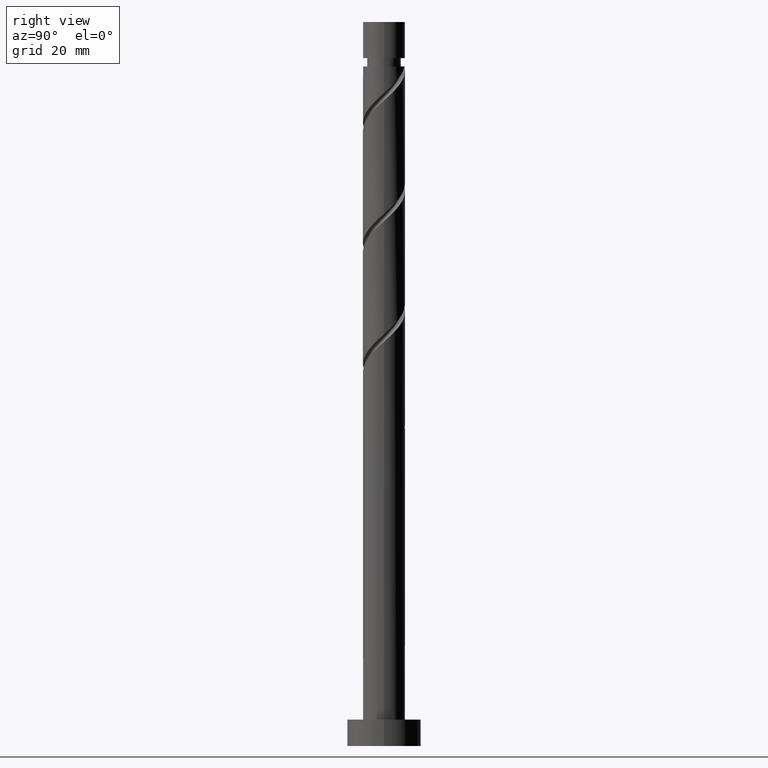
[diagram: clean part render]
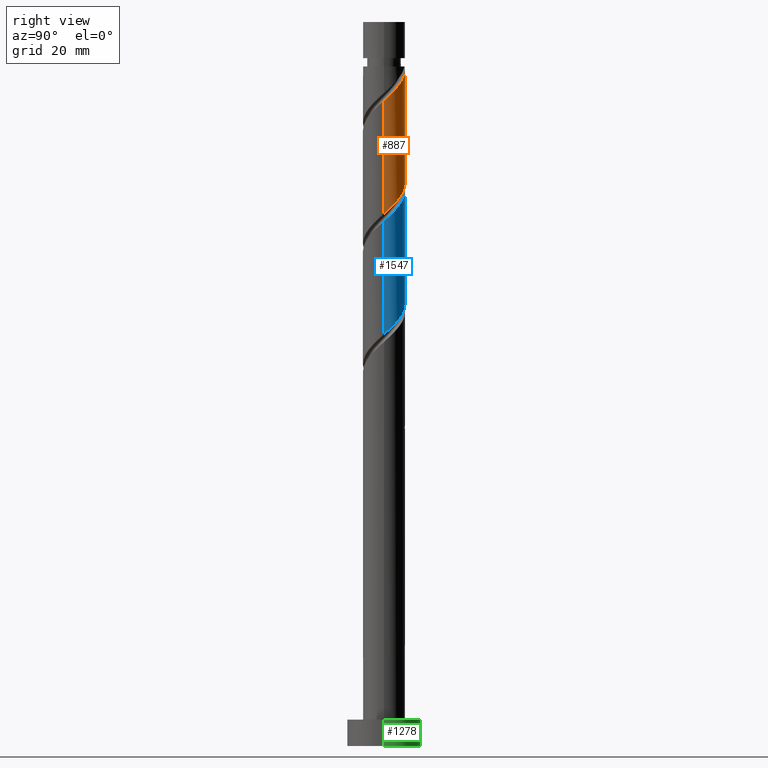
[diagram: same view with three faces highlighted in distinct colors, each labeled with its STEP entity id]
A machine part, right view with three faces highlighted in distinct colors.
Their STEP definitions:

[orange] entity #887 — the highlighted cylindrical surface (edge-blend (fillet) strip) has radius 4 mm, axis along (-0, -0, -1).
#4 = CARTESIAN_POINT ( 'NONE',  ( -3.482167122072585830, 1.968378046503446388, 110.7034948345876728 ) ) ;
#27 = VERTEX_POINT ( 'NONE', #565 ) ;
#46 = CARTESIAN_POINT ( 'NONE',  ( 4.000000000000000000, 5.817323879883851002E-15, 101.1229743360096620 ) ) ;
#57 = DIRECTION ( 'NONE',  ( -0.000000000000000000, -0.000000000000000000, -1.000000000000000000 ) ) ;
#94 = CARTESIAN_POINT ( 'NONE',  ( 2.948087585633559549, 2.703475464551748697, 103.8289948345876894 ) ) ;
#111 = CARTESIAN_POINT ( 'NONE',  ( 3.974115965681417784, 0.4543151893961406840, 101.5374948345876902 ) ) ;
#112 = AXIS2_PLACEMENT_3D ( 'NONE', #1468, #113, #830 ) ;
#113 = DIRECTION ( 'NONE',  ( -0.000000000000000000, -0.000000000000000000, -1.000000000000000000 ) ) ;
#128 = EDGE_CURVE ( 'NONE', #1279, #937, #281, .T. ) ;
#129 = CARTESIAN_POINT ( 'NONE',  ( -0.4543151893961414611, 3.974115965681417784, 107.2662448345876811 ) ) ;
#144 = EDGE_CURVE ( 'NONE', #1176, #27, #641, .T. ) ;
#154 = AXIS2_PLACEMENT_3D ( 'NONE', #1000, #57, #500 ) ;
#160 = DIRECTION ( 'NONE',  ( -0.000000000000000000, -0.000000000000000000, -1.000000000000000000 ) ) ;
#169 = FACE_OUTER_BOUND ( 'NONE', #1538, .T. ) ;
#210 = CARTESIAN_POINT ( 'NONE',  ( 2.519899137249414167, 3.170406666830032805, 104.4018698345876430 ) ) ;
#218 = CARTESIAN_POINT ( 'NONE',  ( 2.703475464551754026, 2.948087585633562213, 125.5982448345876747 ) ) ;
#232 = CARTESIAN_POINT ( 'NONE',  ( -3.793927577315138855, 1.416856955757478609, 111.2763698345876691 ) ) ;
#250 = CARTESIAN_POINT ( 'NONE',  ( 3.920000000000007034, 0.7959899496852963496, 123.3067448345876898 ) ) ;
#276 = CARTESIAN_POINT ( 'NONE',  ( -0.7959899496852943512, 3.919999999999990159, 129.0354948345876664 ) ) ;
#281 = LINE ( 'NONE', #417, #1370 ) ;
#290 = ORIENTED_EDGE ( 'NONE', *, *, #1429, .T. ) ;
#331 = CIRCLE ( 'NONE', #112, 3.999999999999996447 ) ;
#335 = CARTESIAN_POINT ( 'NONE',  ( 3.170406666830039910, 2.519899137249416832, 125.0253698345877069 ) ) ;
#351 = CARTESIAN_POINT ( 'NONE',  ( -3.919999999999999929, 0.7959899496852964607, 111.8492448345876653 ) ) ;
#353 = CARTESIAN_POINT ( 'NONE',  ( 4.000000000000005329, 1.169462017090045067E-15, 122.5755153331656828 ) ) ;
#362 = CARTESIAN_POINT ( 'NONE',  ( -1.660148792339430912, 3.639217771347837971, 108.4119948345876594 ) ) ;
#363 = CARTESIAN_POINT ( 'NONE',  ( -4.000000000000000000, 2.788717117676279064E-15, 112.5804743360096296 ) ) ;
#370 = CARTESIAN_POINT ( 'NONE',  ( 1.416856955757479719, 3.793927577315137079, 105.5476198345876639 ) ) ;
#405 = CARTESIAN_POINT ( 'NONE',  ( 1.083753322405399455, 3.902159508677980337, 127.3168698345876777 ) ) ;
#413 = ORIENTED_EDGE ( 'NONE', *, *, #144, .T. ) ;
#417 = CARTESIAN_POINT ( 'NONE',  ( -4.000000000000000000, 0.000000000000000000, 137.4900000000000091 ) ) ;
#421 = CARTESIAN_POINT ( 'NONE',  ( 0.4543151893961437926, 3.974115965681424001, 127.8897448345876882 ) ) ;
#441 = EDGE_CURVE ( 'NONE', #937, #27, #1274, .T. ) ;
#500 = DIRECTION ( 'NONE',  ( -1.000000000000000000, 0.000000000000000000, 0.000000000000000000 ) ) ;
#565 = CARTESIAN_POINT ( 'NONE',  ( 4.000000000000000000, 5.817323879883851002E-15, 101.1229743360096620 ) ) ;
#575 = CARTESIAN_POINT ( 'NONE',  ( 3.902159508677974564, 1.083753322405396124, 102.1103698345876580 ) ) ;
#584 = CARTESIAN_POINT ( 'NONE',  ( 4.000000000000000000, 0.2278949497857339357, 101.3314213732505351 ) ) ;
#641 = LINE ( 'NONE', #775, #1136 ) ;
#648 = CYLINDRICAL_SURFACE ( 'NONE', #154, 4.000000000000000000 ) ;
#695 = CARTESIAN_POINT ( 'NONE',  ( -4.000000000000000000, 2.788717117676279064E-15, 112.5804743360096296 ) ) ;
#704 = CARTESIAN_POINT ( 'NONE',  ( 1.968378046503447276, 3.482167122072585830, 104.9747448345876677 ) ) ;
#733 = CARTESIAN_POINT ( 'NONE',  ( -0.7959899496852943512, 3.919999999999990159, 129.0354948345876664 ) ) ;
#775 = CARTESIAN_POINT ( 'NONE',  ( 4.000000000000000000, 4.898587196589412829E-16, 137.4900000000000091 ) ) ;
#819 = CARTESIAN_POINT ( 'NONE',  ( -3.999999999999998224, 0.4020151261036919443, 112.2127660474269959 ) ) ;
#830 = DIRECTION ( 'NONE',  ( -1.000000000000000000, 0.000000000000000000, 0.000000000000000000 ) ) ;
#856 = CARTESIAN_POINT ( 'NONE',  ( 1.660148792339435131, 3.639217771347844188, 126.7439948345877241 ) ) ;
#887 = ADVANCED_FACE ( 'NONE', ( #169 ), #648, .T. ) ;
#901 = DIRECTION ( 'NONE',  ( -0.000000000000000000, -0.000000000000000000, -1.000000000000000000 ) ) ;
#911 = CARTESIAN_POINT ( 'NONE',  ( -3.999999999999996447, 0.000000000000000000, 129.0354948345876664 ) ) ;
#937 = VERTEX_POINT ( 'NONE', #363 ) ;
#965 = CARTESIAN_POINT ( 'NONE',  ( -3.170406666830033693, 2.519899137249412835, 110.1306198345876481 ) ) ;
#974 = CARTESIAN_POINT ( 'NONE',  ( -2.703475464551749585, 2.948087585633559105, 109.5577448345876803 ) ) ;
#1000 = CARTESIAN_POINT ( 'NONE',  ( 0.000000000000000000, 0.000000000000000000, 137.4900000000000091 ) ) ;
#1070 = CARTESIAN_POINT ( 'NONE',  ( 2.236544262273469030, 3.376276034017708483, 126.1711198345876994 ) ) ;
#1088 = CARTESIAN_POINT ( 'NONE',  ( 4.000000000000007994, 0.4020151261036809531, 122.9432236217483307 ) ) ;
#1098 = VERTEX_POINT ( 'NONE', #276 ) ;
#1136 = VECTOR ( 'NONE', #901, 1000.000000000000000 ) ;
#1176 = VERTEX_POINT ( 'NONE', #353 ) ;
#1179 = CARTESIAN_POINT ( 'NONE',  ( 3.639217771347838415, 1.660148792339430246, 102.6832448345876685 ) ) ;
#1189 = CARTESIAN_POINT ( 'NONE',  ( 3.376276034017703154, 2.236544262273462813, 103.2561198345876647 ) ) ;
#1197 = EDGE_CURVE ( 'NONE', #1176, #1098, #1454, .T. ) ;
#1239 = ORIENTED_EDGE ( 'NONE', *, *, #128, .F. ) ;
#1274 =( BOUNDED_CURVE ( )  B_SPLINE_CURVE ( 2, ( #695, #819, #351, #232, #4, #965, #974, #1303, #362, #1328, #129, #1457, #1541, #370, #704, #210, #94, #1189, #1179, #575, #111, #584, #46 ),
 .UNSPECIFIED., .F., .T. ) 
 B_SPLINE_CURVE_WITH_KNOTS ( ( 3, 2, 2, 2, 2, 2, 2, 2, 2, 2, 2, 3 ),
 ( 0.4295322023138553047, 0.4375000000000000000, 0.4500000000000000111, 0.4625000000000000222, 0.4749999999999999778, 0.4874999999999999889, 0.5000000000000000000, 0.5124999999999999556, 0.5250000000000000222, 0.5374999999999999778, 0.5500000000000000444, 0.5545322023138551382 ),
 .UNSPECIFIED. ) 
 CURVE ( )  GEOMETRIC_REPRESENTATION_ITEM ( )  RATIONAL_B_SPLINE_CURVE ( ( 0.9039174447099351806, 0.9019565955404647006, 0.9090909090909128354, 0.8978984914501290104, 0.9090909090909128354, 0.8978984914501290104, 0.9090909090909128354, 0.8978984914501290104, 0.9090909090909128354, 0.8978984914501290104, 0.9090909090909128354, 0.8978984914501290104, 0.9090909090909128354, 0.8978984914501290104, 0.9090909090909128354, 0.8978984914501290104, 0.9090909090909128354, 0.8978984914501290104, 0.9090909090909128354, 0.8978984914501290104, 0.9090909090909128354, 0.9050328050005773672, 0.9039174447099351806 ) ) 
 REPRESENTATION_ITEM ( '' )  );
#1279 = VERTEX_POINT ( 'NONE', #911 ) ;
#1303 = CARTESIAN_POINT ( 'NONE',  ( -2.236544262273463701, 3.376276034017703154, 108.9848698345876414 ) ) ;
#1328 = CARTESIAN_POINT ( 'NONE',  ( -1.083753322405396347, 3.902159508677974564, 107.8391198345876347 ) ) ;
#1339 = CARTESIAN_POINT ( 'NONE',  ( -0.1751229436131125916, 4.046072422684867220, 128.4626198345877128 ) ) ;
#1370 = VECTOR ( 'NONE', #160, 1000.000000000000000 ) ;
#1429 = EDGE_CURVE ( 'NONE', #1279, #1098, #331, .T. ) ;
#1445 = CARTESIAN_POINT ( 'NONE',  ( 4.000000000000005329, 1.169462017090045067E-15, 122.5755153331656828 ) ) ;
#1448 = ORIENTED_EDGE ( 'NONE', *, *, #1197, .F. ) ;
#1454 =( BOUNDED_CURVE ( )  B_SPLINE_CURVE ( 2, ( #1445, #1088, #250, #1542, #1569, #335, #218, #1070, #856, #405, #421, #1339, #733 ),
 .UNSPECIFIED., .F., .T. ) 
 B_SPLINE_CURVE_WITH_KNOTS ( ( 3, 2, 2, 2, 2, 2, 3 ),
 ( 0.6795322023138551382, 0.6875000000000000000, 0.6999999999999999556, 0.7125000000000000222, 0.7249999999999999778, 0.7375000000000000444, 0.7500000000000000000 ),
 .UNSPECIFIED. ) 
 CURVE ( )  GEOMETRIC_REPRESENTATION_ITEM ( )  RATIONAL_B_SPLINE_CURVE ( ( 0.9039174447099409537, 0.9019565955404700297, 0.9090909090909186085, 0.8978984914501346726, 0.9090909090909186085, 0.8978984914501346726, 0.9090909090909186085, 0.8978984914501346726, 0.9090909090909186085, 0.8978984914501346726, 0.9090909090909186085, 0.8978984914501346726, 0.9090909090909186085 ) ) 
 REPRESENTATION_ITEM ( '' )  );
#1457 = CARTESIAN_POINT ( 'NONE',  ( 0.1751229436131140627, 4.046072422684861891, 106.6933698345876564 ) ) ;
#1467 = ORIENTED_EDGE ( 'NONE', *, *, #441, .F. ) ;
#1468 = CARTESIAN_POINT ( 'NONE',  ( 0.000000000000000000, 0.000000000000000000, 129.0354948345876664 ) ) ;
#1538 = EDGE_LOOP ( 'NONE', ( #1448, #413, #1467, #1239, #290 ) ) ;
#1541 = CARTESIAN_POINT ( 'NONE',  ( 0.7959899496852972378, 3.919999999999999929, 106.1204948345876744 ) ) ;
#1542 = CARTESIAN_POINT ( 'NONE',  ( 3.793927577315144184, 1.416856955757479275, 123.8796198345877002 ) ) ;
#1569 = CARTESIAN_POINT ( 'NONE',  ( 3.482167122072592047, 1.968378046503447720, 124.4524948345876680 ) ) ;

[blue] entity #1547 — the highlighted cylindrical surface (edge-blend (fillet) strip) has radius 4 mm, axis along (-0, -0, -1).
#78 = CARTESIAN_POINT ( 'NONE',  ( -4.000000000000004441, 0.2278949497857358508, 110.9095682959247853 ) ) ;
#95 = CARTESIAN_POINT ( 'NONE',  ( -2.519899137249416832, 3.170406666830039022, 107.8391198345876774 ) ) ;
#121 = CARTESIAN_POINT ( 'NONE',  ( 1.968378046503447276, 3.482167122072585830, 82.05974483458764723 ) ) ;
#193 = CARTESIAN_POINT ( 'NONE',  ( 2.703475464551754026, 2.948087585633562213, 102.6832448345876827 ) ) ;
#201 = DIRECTION ( 'NONE',  ( -0.000000000000000000, -0.000000000000000000, -1.000000000000000000 ) ) ;
#202 = CARTESIAN_POINT ( 'NONE',  ( 0.4543151893961437926, 3.974115965681424001, 104.9747448345876819 ) ) ;
#261 = LINE ( 'NONE', #1275, #1138 ) ;
#310 = CARTESIAN_POINT ( 'NONE',  ( 1.660148792339435131, 3.639217771347844188, 103.8289948345877178 ) ) ;
#317 = CARTESIAN_POINT ( 'NONE',  ( -3.974115965681424001, 0.4543151893961430154, 110.7034948345876586 ) ) ;
#321 = EDGE_CURVE ( 'NONE', #1324, #798, #1059, .T. ) ;
#324 = CARTESIAN_POINT ( 'NONE',  ( 3.170406666830039910, 2.519899137249416832, 102.1103698345877007 ) ) ;
#342 = EDGE_LOOP ( 'NONE', ( #905, #480, #787, #661 ) ) ;
#365 = LINE ( 'NONE', #461, #1552 ) ;
#416 = CARTESIAN_POINT ( 'NONE',  ( 0.1751229436131140627, 4.046072422684861891, 83.77836983458766440 ) ) ;
#424 = EDGE_CURVE ( 'NONE', #826, #1526, #1492, .T. ) ;
#427 = CARTESIAN_POINT ( 'NONE',  ( -3.639217771347844188, 1.660148792339434021, 109.5577448345877087 ) ) ;
#447 = CARTESIAN_POINT ( 'NONE',  ( -1.083753322405396347, 3.902159508677974564, 84.92411983458764269 ) ) ;
#461 = CARTESIAN_POINT ( 'NONE',  ( 4.000000000000000000, 4.898587196589412829E-16, 137.4900000000000091 ) ) ;
#475 = CARTESIAN_POINT ( 'NONE',  ( 4.000000000000000000, 0.2278949497857339357, 78.41642137325052886 ) ) ;
#480 = ORIENTED_EDGE ( 'NONE', *, *, #1409, .T. ) ;
#589 = CARTESIAN_POINT ( 'NONE',  ( 2.948087585633559549, 2.703475464551748697, 80.91399483458765474 ) ) ;
#591 = DIRECTION ( 'NONE',  ( -0.000000000000000000, -0.000000000000000000, -1.000000000000000000 ) ) ;
#599 = CARTESIAN_POINT ( 'NONE',  ( 4.000000000000007105, 3.268496406738844695E-15, 99.66051533316570499 ) ) ;
#602 = CARTESIAN_POINT ( 'NONE',  ( -3.793927577315138855, 1.416856955757478609, 88.36136983458767702 ) ) ;
#647 = CARTESIAN_POINT ( 'NONE',  ( -0.4543151893961414611, 3.974115965681417784, 84.35124483458767486 ) ) ;
#661 = ORIENTED_EDGE ( 'NONE', *, *, #1248, .F. ) ;
#679 = CARTESIAN_POINT ( 'NONE',  ( -2.948087585633563101, 2.703475464551753582, 108.4119948345877162 ) ) ;
#688 = CARTESIAN_POINT ( 'NONE',  ( -0.1751229436131125916, 4.046072422684867220, 105.5476198345876782 ) ) ;
#723 = CARTESIAN_POINT ( 'NONE',  ( 3.376276034017703154, 2.236544262273462813, 80.34111983458765849 ) ) ;
#726 = CARTESIAN_POINT ( 'NONE',  ( -4.000000000000000888, 0.4020151261036819523, 89.29776604742701807 ) ) ;
#734 = CARTESIAN_POINT ( 'NONE',  ( -3.919999999999999929, 0.7959899496852964607, 88.93424483458767327 ) ) ;
#787 = ORIENTED_EDGE ( 'NONE', *, *, #424, .F. ) ;
#790 = CARTESIAN_POINT ( 'NONE',  ( -3.902159508677980337, 1.083753322405399011, 110.1306198345876766 ) ) ;
#798 = VERTEX_POINT ( 'NONE', #1460 ) ;
#800 = CARTESIAN_POINT ( 'NONE',  ( 0.000000000000000000, 0.000000000000000000, 137.4900000000000091 ) ) ;
#826 = VERTEX_POINT ( 'NONE', #853 ) ;
#829 = CARTESIAN_POINT ( 'NONE',  ( 1.416856955757479719, 3.793927577315137079, 82.63261983458764348 ) ) ;
#853 = CARTESIAN_POINT ( 'NONE',  ( -4.000000000000000888, 4.827779096192269279E-15, 89.66547433600965178 ) ) ;
#900 = CARTESIAN_POINT ( 'NONE',  ( 0.7959899496852972378, 3.919999999999999929, 83.20549483458768236 ) ) ;
#905 = ORIENTED_EDGE ( 'NONE', *, *, #321, .F. ) ;
#914 = CARTESIAN_POINT ( 'NONE',  ( 3.482167122072592047, 1.968378046503447720, 101.5374948345877044 ) ) ;
#922 = CARTESIAN_POINT ( 'NONE',  ( 4.000000000000007105, 3.268496406738844695E-15, 99.66051533316570499 ) ) ;
#927 = FACE_OUTER_BOUND ( 'NONE', #342, .T. ) ;
#928 = CARTESIAN_POINT ( 'NONE',  ( -3.170406666830033693, 2.519899137249412835, 87.21561983458765610 ) ) ;
#929 = CARTESIAN_POINT ( 'NONE',  ( 3.920000000000007034, 0.7959899496852963496, 100.3917448345876977 ) ) ;
#948 = CARTESIAN_POINT ( 'NONE',  ( 3.974115965681417784, 0.4543151893961406840, 78.62249483458768395 ) ) ;
#955 = CARTESIAN_POINT ( 'NONE',  ( 2.519899137249414167, 3.170406666830032805, 81.48686983458766520 ) ) ;
#1029 = CARTESIAN_POINT ( 'NONE',  ( -3.376276034017708927, 2.236544262273468142, 108.9848698345876841 ) ) ;
#1043 = CARTESIAN_POINT ( 'NONE',  ( -1.416856955757480163, 3.793927577315144184, 106.6933698345876707 ) ) ;
#1059 =( BOUNDED_CURVE ( )  B_SPLINE_CURVE ( 2, ( #922, #1404, #929, #1157, #914, #324, #193, #1522, #310, #1293, #202, #688, #1171, #1043, #1267, #95, #679, #1029, #427, #790, #317, #78, #1515 ),
 .UNSPECIFIED., .F., .T. ) 
 B_SPLINE_CURVE_WITH_KNOTS ( ( 3, 2, 2, 2, 2, 2, 2, 2, 2, 2, 2, 3 ),
 ( 0.4295322023138553047, 0.4375000000000000000, 0.4499999999999999556, 0.4625000000000000222, 0.4749999999999999778, 0.4875000000000000444, 0.5000000000000000000, 0.5124999999999999556, 0.5250000000000000222, 0.5374999999999999778, 0.5500000000000000444, 0.5545322023138551382 ),
 .UNSPECIFIED. ) 
 CURVE ( )  GEOMETRIC_REPRESENTATION_ITEM ( )  RATIONAL_B_SPLINE_CURVE ( ( 0.9039174447099407317, 0.9019565955404702517, 0.9090909090909186085, 0.8978984914501346726, 0.9090909090909186085, 0.8978984914501346726, 0.9090909090909186085, 0.8978984914501346726, 0.9090909090909186085, 0.8978984914501346726, 0.9090909090909186085, 0.8978984914501346726, 0.9090909090909186085, 0.8978984914501346726, 0.9090909090909186085, 0.8978984914501346726, 0.9090909090909186085, 0.8978984914501346726, 0.9090909090909186085, 0.8978984914501346726, 0.9090909090909186085, 0.9050328050005831404, 0.9039174447099409537 ) ) 
 REPRESENTATION_ITEM ( '' )  );
#1068 = CARTESIAN_POINT ( 'NONE',  ( 3.902159508677974564, 1.083753322405396124, 79.19536983458765178 ) ) ;
#1138 = VECTOR ( 'NONE', #1155, 1000.000000000000000 ) ;
#1140 = CARTESIAN_POINT ( 'NONE',  ( 4.000000000000000000, 5.817323879883851002E-15, 78.20797433600966997 ) ) ;
#1155 = DIRECTION ( 'NONE',  ( -0.000000000000000000, -0.000000000000000000, -1.000000000000000000 ) ) ;
#1157 = CARTESIAN_POINT ( 'NONE',  ( 3.793927577315144184, 1.416856955757479275, 100.9646198345877082 ) ) ;
#1171 = CARTESIAN_POINT ( 'NONE',  ( -0.7959899496852960166, 3.920000000000007034, 106.1204948345876886 ) ) ;
#1248 = EDGE_CURVE ( 'NONE', #798, #826, #261, .T. ) ;
#1259 = CARTESIAN_POINT ( 'NONE',  ( -2.703475464551749585, 2.948087585633559105, 86.64274483458767406 ) ) ;
#1267 = CARTESIAN_POINT ( 'NONE',  ( -1.968378046503448386, 3.482167122072591159, 107.2662448345876811 ) ) ;
#1275 = CARTESIAN_POINT ( 'NONE',  ( -4.000000000000000000, 0.000000000000000000, 137.4900000000000091 ) ) ;
#1290 = DIRECTION ( 'NONE',  ( -1.000000000000000000, 0.000000000000000000, 0.000000000000000000 ) ) ;
#1293 = CARTESIAN_POINT ( 'NONE',  ( 1.083753322405399455, 3.902159508677980337, 104.4018698345876857 ) ) ;
#1294 = AXIS2_PLACEMENT_3D ( 'NONE', #800, #201, #1290 ) ;
#1311 = CARTESIAN_POINT ( 'NONE',  ( 3.639217771347838415, 1.660148792339430246, 79.76824483458767645 ) ) ;
#1324 = VERTEX_POINT ( 'NONE', #599 ) ;
#1384 = CARTESIAN_POINT ( 'NONE',  ( -2.236544262273463701, 3.376276034017703154, 86.06986983458766360 ) ) ;
#1404 = CARTESIAN_POINT ( 'NONE',  ( 4.000000000000004441, 0.4020151261036892243, 100.0282236217483103 ) ) ;
#1409 = EDGE_CURVE ( 'NONE', #1324, #1526, #365, .T. ) ;
#1412 = CYLINDRICAL_SURFACE ( 'NONE', #1294, 4.000000000000000000 ) ;
#1413 = CARTESIAN_POINT ( 'NONE',  ( -1.660148792339430912, 3.639217771347837971, 85.49699483458765314 ) ) ;
#1422 = CARTESIAN_POINT ( 'NONE',  ( 4.000000000000000000, 5.817323879883851002E-15, 78.20797433600966997 ) ) ;
#1460 = CARTESIAN_POINT ( 'NONE',  ( -4.000000000000005329, -1.739199922851861698E-15, 111.1180153331657152 ) ) ;
#1492 =( BOUNDED_CURVE ( )  B_SPLINE_CURVE ( 2, ( #1572, #726, #734, #602, #1506, #928, #1259, #1384, #1413, #447, #647, #416, #900, #829, #121, #955, #589, #723, #1311, #1068, #948, #475, #1422 ),
 .UNSPECIFIED., .F., .T. ) 
 B_SPLINE_CURVE_WITH_KNOTS ( ( 3, 2, 2, 2, 2, 2, 2, 2, 2, 2, 2, 3 ),
 ( 0.6795322023138551382, 0.6875000000000000000, 0.6999999999999999556, 0.7125000000000000222, 0.7249999999999999778, 0.7375000000000000444, 0.7500000000000000000, 0.7624999999999999556, 0.7750000000000000222, 0.7874999999999999778, 0.8000000000000000444, 0.8045322023138551382 ),
 .UNSPECIFIED. ) 
 CURVE ( )  GEOMETRIC_REPRESENTATION_ITEM ( )  RATIONAL_B_SPLINE_CURVE ( ( 0.9039174447099351806, 0.9019565955404644786, 0.9090909090909128354, 0.8978984914501290104, 0.9090909090909128354, 0.8978984914501290104, 0.9090909090909128354, 0.8978984914501290104, 0.9090909090909128354, 0.8978984914501290104, 0.9090909090909128354, 0.8978984914501290104, 0.9090909090909128354, 0.8978984914501290104, 0.9090909090909128354, 0.8978984914501290104, 0.9090909090909128354, 0.8978984914501290104, 0.9090909090909128354, 0.8978984914501290104, 0.9090909090909128354, 0.9050328050005773672, 0.9039174447099351806 ) ) 
 REPRESENTATION_ITEM ( '' )  );
#1506 = CARTESIAN_POINT ( 'NONE',  ( -3.482167122072585830, 1.968378046503446388, 87.78849483458765235 ) ) ;
#1515 = CARTESIAN_POINT ( 'NONE',  ( -4.000000000000005329, -1.739199922851861698E-15, 111.1180153331657152 ) ) ;
#1522 = CARTESIAN_POINT ( 'NONE',  ( 2.236544262273469030, 3.376276034017708483, 103.2561198345876932 ) ) ;
#1526 = VERTEX_POINT ( 'NONE', #1140 ) ;
#1547 = ADVANCED_FACE ( 'NONE', ( #927 ), #1412, .T. ) ;
#1552 = VECTOR ( 'NONE', #591, 1000.000000000000000 ) ;
#1572 = CARTESIAN_POINT ( 'NONE',  ( -4.000000000000000888, 4.827779096192269279E-15, 89.66547433600965178 ) ) ;

[green] entity #1278 — the highlighted cylindrical surface (partial cylindrical patch) has radius 7 mm, axis along (-0, -0, -1).
#34 = CIRCLE ( 'NONE', #1396, 7.000000000000000000 ) ;
#68 = DIRECTION ( 'NONE',  ( -0.000000000000000000, -0.000000000000000000, -1.000000000000000000 ) ) ;
#87 = CARTESIAN_POINT ( 'NONE',  ( 0.000000000000000000, 0.000000000000000000, 5.000000000000000000 ) ) ;
#106 = ORIENTED_EDGE ( 'NONE', *, *, #795, .T. ) ;
#184 = DIRECTION ( 'NONE',  ( 1.000000000000000000, 0.000000000000000000, 0.000000000000000000 ) ) ;
#220 = EDGE_LOOP ( 'NONE', ( #1502, #859, #106, #277 ) ) ;
#277 = ORIENTED_EDGE ( 'NONE', *, *, #536, .F. ) ;
#357 = EDGE_CURVE ( 'NONE', #620, #1255, #1288, .T. ) ;
#387 = AXIS2_PLACEMENT_3D ( 'NONE', #721, #598, #668 ) ;
#458 = VECTOR ( 'NONE', #1458, 1000.000000000000000 ) ;
#485 = DIRECTION ( 'NONE',  ( 1.000000000000000000, 0.000000000000000000, 0.000000000000000000 ) ) ;
#505 = CARTESIAN_POINT ( 'NONE',  ( -7.000000000000000000, 0.000000000000000000, 5.000000000000000000 ) ) ;
#536 = EDGE_CURVE ( 'NONE', #1255, #1421, #1062, .T. ) ;
#554 = DIRECTION ( 'NONE',  ( 0.000000000000000000, 0.000000000000000000, 1.000000000000000000 ) ) ;
#598 = DIRECTION ( 'NONE',  ( -0.000000000000000000, -0.000000000000000000, -1.000000000000000000 ) ) ;
#608 = CARTESIAN_POINT ( 'NONE',  ( 7.000000000000000000, 8.572527594031473190E-16, 0.000000000000000000 ) ) ;
#620 = VERTEX_POINT ( 'NONE', #667 ) ;
#667 = CARTESIAN_POINT ( 'NONE',  ( 7.000000000000000000, 8.572527594031473190E-16, 5.000000000000000000 ) ) ;
#668 = DIRECTION ( 'NONE',  ( -1.000000000000000000, 0.000000000000000000, 0.000000000000000000 ) ) ;
#721 = CARTESIAN_POINT ( 'NONE',  ( 0.000000000000000000, 0.000000000000000000, 5.000000000000000000 ) ) ;
#795 = EDGE_CURVE ( 'NONE', #1325, #1421, #34, .T. ) ;
#832 = CARTESIAN_POINT ( 'NONE',  ( 0.000000000000000000, 0.000000000000000000, 0.000000000000000000 ) ) ;
#844 = CYLINDRICAL_SURFACE ( 'NONE', #387, 7.000000000000000000 ) ;
#859 = ORIENTED_EDGE ( 'NONE', *, *, #1483, .T. ) ;
#860 = CARTESIAN_POINT ( 'NONE',  ( 7.000000000000000000, 8.572527594031473190E-16, 5.000000000000000000 ) ) ;
#867 = AXIS2_PLACEMENT_3D ( 'NONE', #87, #554, #184 ) ;
#963 = FACE_OUTER_BOUND ( 'NONE', #220, .T. ) ;
#975 = LINE ( 'NONE', #860, #458 ) ;
#1062 = LINE ( 'NONE', #1160, #1498 ) ;
#1160 = CARTESIAN_POINT ( 'NONE',  ( -7.000000000000000000, 0.000000000000000000, 5.000000000000000000 ) ) ;
#1255 = VERTEX_POINT ( 'NONE', #505 ) ;
#1278 = ADVANCED_FACE ( 'NONE', ( #963 ), #844, .T. ) ;
#1288 = CIRCLE ( 'NONE', #867, 7.000000000000000000 ) ;
#1325 = VERTEX_POINT ( 'NONE', #608 ) ;
#1396 = AXIS2_PLACEMENT_3D ( 'NONE', #832, #1573, #485 ) ;
#1421 = VERTEX_POINT ( 'NONE', #1553 ) ;
#1458 = DIRECTION ( 'NONE',  ( -0.000000000000000000, -0.000000000000000000, -1.000000000000000000 ) ) ;
#1483 = EDGE_CURVE ( 'NONE', #620, #1325, #975, .T. ) ;
#1498 = VECTOR ( 'NONE', #68, 1000.000000000000000 ) ;
#1502 = ORIENTED_EDGE ( 'NONE', *, *, #357, .F. ) ;
#1553 = CARTESIAN_POINT ( 'NONE',  ( -7.000000000000000000, 0.000000000000000000, 0.000000000000000000 ) ) ;
#1573 = DIRECTION ( 'NONE',  ( 0.000000000000000000, 0.000000000000000000, 1.000000000000000000 ) ) ;